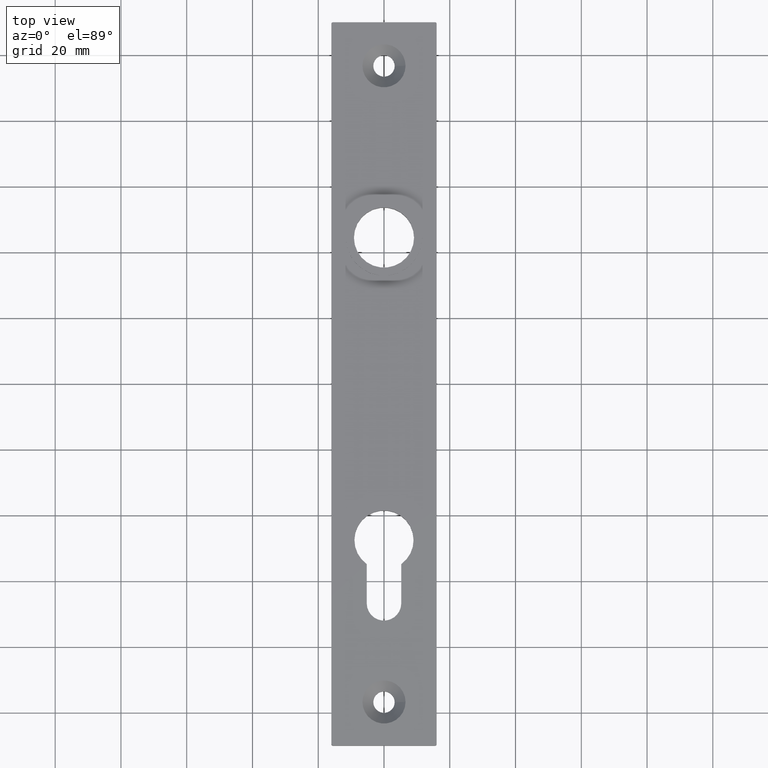
[diagram: clean part render]
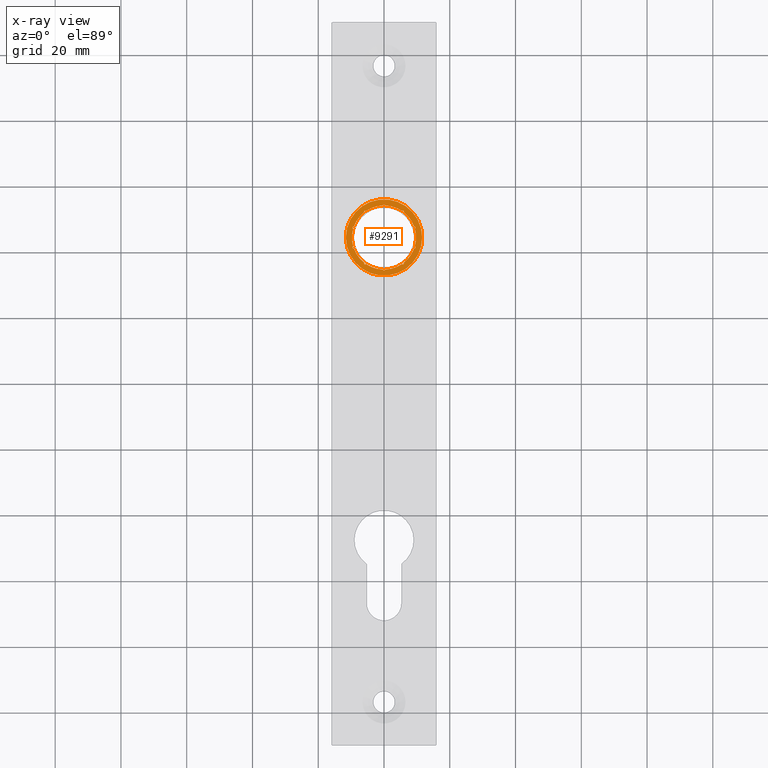
[diagram: x-ray — body ghosted, one internal face saturated and labeled with its STEP entity id]
A machine part, top view, then the same camera in x-ray: the body is ghosted and one INTERNAL B-rep face — a face not visible from any outside direction — is saturated and labeled: STEP entity #9291.
In plain terms, the highlighted planar face has unit normal (0, 0, -1).
Its self-contained STEP definition (entity closure, byte-faithful):
#13 = ORIENTED_EDGE ( 'NONE', *, *, #1065, .F. ) ;
#35 = ORIENTED_EDGE ( 'NONE', *, *, #4337, .F. ) ;
#56 = DIRECTION ( 'NONE',  ( -0.0000000000000000000, -0.0000000000000000000, -1.000000000000000000 ) ) ;
#109 = AXIS2_PLACEMENT_3D ( 'NONE', #5144, #2490, #6013 ) ;
#233 = AXIS2_PLACEMENT_3D ( 'NONE', #5116, #2496, #11509 ) ;
#245 = DIRECTION ( 'NONE',  ( -0.0000000000000000000, -0.0000000000000000000, -1.000000000000000000 ) ) ;
#263 = VECTOR ( 'NONE', #8222, 1000.000000000000200 ) ;
#308 = DIRECTION ( 'NONE',  ( 0.8090169943749507800, 0.5877852522924685900, 0.0000000000000000000 ) ) ;
#319 = VECTOR ( 'NONE', #6135, 1000.000000000000000 ) ;
#325 = CARTESIAN_POINT ( 'NONE',  ( -9.192498026025610600, -3.249689222297300600, 5.800000000000000700 ) ) ;
#475 = DIRECTION ( 'NONE',  ( 0.9510565162951543100, 0.3090169943749451200, 0.0000000000000000000 ) ) ;
#499 = CIRCLE ( 'NONE', #4382, 9.750000000000000000 ) ;
#521 = DIRECTION ( 'NONE',  ( 0.5877852522924740300, 0.8090169943749469000, 0.0000000000000000000 ) ) ;
#531 = VERTEX_POINT ( 'NONE', #6397 ) ;
#559 = CARTESIAN_POINT ( 'NONE',  ( -5.931276221600192000, -7.738375952554911800, 5.800000000000000700 ) ) ;
#580 = VECTOR ( 'NONE', #9521, 1000.000000000000000 ) ;
#582 = DIRECTION ( 'NONE',  ( 0.3090169943749515600, 0.9510565162951522000, 0.0000000000000000000 ) ) ;
#627 = VERTEX_POINT ( 'NONE', #3161 ) ;
#697 = AXIS2_PLACEMENT_3D ( 'NONE', #5592, #9920, #1908 ) ;
#713 = CARTESIAN_POINT ( 'NONE',  ( 0.2500000000000000000, -9.996874511566103300, 5.800000000000000700 ) ) ;
#716 = EDGE_CURVE ( 'NONE', #3924, #531, #5306, .T. ) ;
#724 = DIRECTION ( 'NONE',  ( -0.9510565162951522000, 0.3090169943749519500, 0.0000000000000000000 ) ) ;
#770 = VERTEX_POINT ( 'NONE', #3974 ) ;
#779 = LINE ( 'NONE', #11527, #9333 ) ;
#784 = ORIENTED_EDGE ( 'NONE', *, *, #1371, .F. ) ;
#798 = DIRECTION ( 'NONE',  ( -4.335418464185559100E-016, 1.000000000000000000, -0.0000000000000000000 ) ) ;
#801 = VERTEX_POINT ( 'NONE', #7722 ) ;
#872 = DIRECTION ( 'NONE',  ( -1.000000000000000000, 0.0000000000000000000, 0.0000000000000000000 ) ) ;
#910 = ORIENTED_EDGE ( 'NONE', *, *, #5597, .F. ) ;
#913 = VECTOR ( 'NONE', #10290, 999.9999999999998900 ) ;
#969 = CARTESIAN_POINT ( 'NONE',  ( 0.2500000000000000000, -9.996874511566103300, 5.800000000000000700 ) ) ;
#994 = EDGE_CURVE ( 'NONE', #4027, #2936, #8196, .T. ) ;
#1005 = ORIENTED_EDGE ( 'NONE', *, *, #9522, .F. ) ;
#1018 = ORIENTED_EDGE ( 'NONE', *, *, #9320, .F. ) ;
#1051 = ORIENTED_EDGE ( 'NONE', *, *, #6355, .F. ) ;
#1065 = EDGE_CURVE ( 'NONE', #6327, #1193, #5805, .T. ) ;
#1073 = CARTESIAN_POINT ( 'NONE',  ( -11.59999999999999800, 0.0000000000000000000, 5.800000000000000700 ) ) ;
#1114 = DIRECTION ( 'NONE',  ( 0.9510565162951498700, -0.3090169943749585500, 0.0000000000000000000 ) ) ;
#1129 = CARTESIAN_POINT ( 'NONE',  ( -9.584846895403638100, -2.851439985633797700, 5.800000000000000700 ) ) ;
#1138 = AXIS2_PLACEMENT_3D ( 'NONE', #7512, #8518, #6728 ) ;
#1150 = DIRECTION ( 'NONE',  ( 0.0000000000000000000, 0.0000000000000000000, -1.000000000000000000 ) ) ;
#1193 = VERTEX_POINT ( 'NONE', #5171 ) ;
#1199 = CARTESIAN_POINT ( 'NONE',  ( -9.347006523213023500, 2.774160964149919600, 5.800000000000000700 ) ) ;
#1228 = CARTESIAN_POINT ( 'NONE',  ( 0.0000000000000000000, 0.0000000000000000000, 5.800000000000000700 ) ) ;
#1324 = CARTESIAN_POINT ( 'NONE',  ( -6.078269655510708500, 7.940695057417690000, 5.800000000000000700 ) ) ;
#1363 = CARTESIAN_POINT ( 'NONE',  ( 9.584846895403620300, 2.851439985633862600, 5.800000000000000700 ) ) ;
#1371 = EDGE_CURVE ( 'NONE', #6170, #5822, #4948, .T. ) ;
#1393 = VERTEX_POINT ( 'NONE', #9126 ) ;
#1415 = CARTESIAN_POINT ( 'NONE',  ( 9.584846895403599000, -2.851439985633931400, 5.800000000000000700 ) ) ;
#1448 = ORIENTED_EDGE ( 'NONE', *, *, #9459, .F. ) ;
#1459 = ORIENTED_EDGE ( 'NONE', *, *, #1744, .F. ) ;
#1478 = CARTESIAN_POINT ( 'NONE',  ( -5.931276221600021400, 7.738375952555043300, 5.800000000000000700 ) ) ;
#1479 = LINE ( 'NONE', #11360, #8656 ) ;
#1518 = CIRCLE ( 'NONE', #7227, 10.00000000000000400 ) ;
#1545 = VECTOR ( 'NONE', #1114, 1000.000000000000100 ) ;
#1552 = DIRECTION ( 'NONE',  ( 4.335418464185559100E-016, 1.000000000000000000, 0.0000000000000000000 ) ) ;
#1553 = FACE_OUTER_BOUND ( 'NONE', #2237, .T. ) ;
#1584 = DIRECTION ( 'NONE',  ( 4.335418464185559100E-016, -1.000000000000000000, 0.0000000000000000000 ) ) ;
#1597 = VERTEX_POINT ( 'NONE', #11208 ) ;
#1631 = DIRECTION ( 'NONE',  ( -0.5877852522924745800, -0.8090169943749464500, 0.0000000000000000000 ) ) ;
#1691 = LINE ( 'NONE', #1324, #2409 ) ;
#1712 = AXIS2_PLACEMENT_3D ( 'NONE', #8399, #9383, #4051 ) ;
#1744 = EDGE_CURVE ( 'NONE', #11380, #9967, #3975, .T. ) ;
#1813 = DIRECTION ( 'NONE',  ( 0.0000000000000000000, 0.0000000000000000000, -1.000000000000000000 ) ) ;
#1822 = CARTESIAN_POINT ( 'NONE',  ( -5.526767724412721300, -8.032268578701151200, 5.800000000000000700 ) ) ;
#1846 = CARTESIAN_POINT ( 'NONE',  ( -5.673761158323230800, 8.234587683563923100, 5.800000000000000700 ) ) ;
#1875 = ORIENTED_EDGE ( 'NONE', *, *, #4650, .F. ) ;
#1908 = DIRECTION ( 'NONE',  ( 0.8090169943749422300, -0.5877852522924803500, 0.0000000000000000000 ) ) ;
#1952 = EDGE_CURVE ( 'NONE', #10498, #6170, #2842, .T. ) ;
#1966 = AXIS2_PLACEMENT_3D ( 'NONE', #8889, #3451, #6983 ) ;
#1979 = DIRECTION ( 'NONE',  ( -0.0000000000000000000, -0.0000000000000000000, -1.000000000000000000 ) ) ;
#2001 = CARTESIAN_POINT ( 'NONE',  ( 9.192498026025568000, -3.249689222297429800, 5.800000000000000700 ) ) ;
#2018 = CARTESIAN_POINT ( 'NONE',  ( 0.0000000000000000000, 0.0000000000000000000, 5.800000000000000700 ) ) ;
#2039 = CIRCLE ( 'NONE', #1138, 9.750000000000000000 ) ;
#2048 = CARTESIAN_POINT ( 'NONE',  ( -0.2499999999999998900, -9.746794344808963100, 5.800000000000000700 ) ) ;
#2063 = CARTESIAN_POINT ( 'NONE',  ( 0.0000000000000000000, 0.0000000000000000000, 5.800000000000000700 ) ) ;
#2126 = VERTEX_POINT ( 'NONE', #3514 ) ;
#2216 = VECTOR ( 'NONE', #7488, 1000.000000000000000 ) ;
#2237 = EDGE_LOOP ( 'NONE', ( #3639 ) ) ;
#2270 = CARTESIAN_POINT ( 'NONE',  ( -9.584846895403579500, 2.851439985633998500, 5.800000000000000700 ) ) ;
#2304 = CARTESIAN_POINT ( 'NONE',  ( -5.526767724412544600, 8.032268578701275500, 5.800000000000000700 ) ) ;
#2333 = CARTESIAN_POINT ( 'NONE',  ( 9.430338398216147100, 3.326968243781439800, 5.800000000000000700 ) ) ;
#2358 = VECTOR ( 'NONE', #1631, 999.9999999999998900 ) ;
#2409 = VECTOR ( 'NONE', #10326, 999.9999999999998900 ) ;
#2490 = DIRECTION ( 'NONE',  ( 0.0000000000000000000, 0.0000000000000000000, -1.000000000000000000 ) ) ;
#2496 = DIRECTION ( 'NONE',  ( -0.0000000000000000000, -0.0000000000000000000, -1.000000000000000000 ) ) ;
#2574 = CARTESIAN_POINT ( 'NONE',  ( -9.347006523213080300, -2.774160964149722900, 5.800000000000000700 ) ) ;
#2585 = CARTESIAN_POINT ( 'NONE',  ( -6.078269655510882600, -7.940695057417557700, 5.800000000000000700 ) ) ;
#2704 = EDGE_CURVE ( 'NONE', #5657, #4703, #10798, .T. ) ;
#2713 = VECTOR ( 'NONE', #2746, 1000.000000000000100 ) ;
#2746 = DIRECTION ( 'NONE',  ( -0.9510565162951500900, 0.3090169943749578300, 0.0000000000000000000 ) ) ;
#2814 = CARTESIAN_POINT ( 'NONE',  ( 0.0000000000000000000, 0.0000000000000000000, 5.800000000000000700 ) ) ;
#2842 = LINE ( 'NONE', #3960, #580 ) ;
#2850 = ORIENTED_EDGE ( 'NONE', *, *, #4534, .F. ) ;
#2936 = VERTEX_POINT ( 'NONE', #6861 ) ;
#3035 = CARTESIAN_POINT ( 'NONE',  ( -0.2499999999999989200, 9.746794344808963100, 5.800000000000000700 ) ) ;
#3053 = EDGE_CURVE ( 'NONE', #10393, #11407, #5997, .T. ) ;
#3087 = DIRECTION ( 'NONE',  ( 0.0000000000000000000, -0.0000000000000000000, -1.000000000000000000 ) ) ;
#3115 = CARTESIAN_POINT ( 'NONE',  ( 0.0000000000000000000, 0.0000000000000000000, 5.800000000000000700 ) ) ;
#3132 = PLANE ( 'NONE',  #1712 ) ;
#3161 = CARTESIAN_POINT ( 'NONE',  ( 5.526767724412605900, -8.032268578701231100, 5.800000000000000700 ) ) ;
#3183 = AXIS2_PLACEMENT_3D ( 'NONE', #2063, #11124, #8362 ) ;
#3258 = CARTESIAN_POINT ( 'NONE',  ( 6.078269655510768000, -7.940695057417644700, 5.800000000000000700 ) ) ;
#3283 = EDGE_CURVE ( 'NONE', #1193, #5521, #4996, .T. ) ;
#3315 = ORIENTED_EDGE ( 'NONE', *, *, #3053, .F. ) ;
#3408 = CIRCLE ( 'NONE', #233, 11.59999999999999800 ) ;
#3434 = EDGE_CURVE ( 'NONE', #2936, #6884, #9779, .T. ) ;
#3451 = DIRECTION ( 'NONE',  ( -0.0000000000000000000, -0.0000000000000000000, -1.000000000000000000 ) ) ;
#3458 = CARTESIAN_POINT ( 'NONE',  ( 9.430338398216124000, -3.326968243781508200, 5.800000000000000700 ) ) ;
#3462 = DIRECTION ( 'NONE',  ( -0.5877852522924682500, 0.8090169943749510000, 0.0000000000000000000 ) ) ;
#3489 = CARTESIAN_POINT ( 'NONE',  ( 0.0000000000000000000, 0.0000000000000000000, 5.800000000000000700 ) ) ;
#3493 = ORIENTED_EDGE ( 'NONE', *, *, #5956, .F. ) ;
#3500 = VERTEX_POINT ( 'NONE', #8648 ) ;
#3513 = ORIENTED_EDGE ( 'NONE', *, *, #4416, .F. ) ;
#3514 = CARTESIAN_POINT ( 'NONE',  ( 5.673761158323352500, 8.234587683563841400, 5.800000000000000700 ) ) ;
#3639 = ORIENTED_EDGE ( 'NONE', *, *, #6176, .T. ) ;
#3678 = CARTESIAN_POINT ( 'NONE',  ( 9.192498026025591100, 3.249689222297362800, 5.800000000000000700 ) ) ;
#3686 = VERTEX_POINT ( 'NONE', #4556 ) ;
#3737 = EDGE_LOOP ( 'NONE', ( #1875, #1051, #7074, #1018, #3315, #10103, #9150, #6036, #35, #5857, #13, #11122, #784, #5754, #910, #4129, #11100, #3513, #7433, #5406, #10062, #9410, #4075, #8549, #2850, #9248, #1448, #11722, #7878, #4358, #6933, #3493, #8657, #4886, #9239, #4060, #4494, #1005, #10119, #1459 ) ) ;
#3742 = EDGE_CURVE ( 'NONE', #8463, #3924, #2039, .T. ) ;
#3772 = CARTESIAN_POINT ( 'NONE',  ( 0.0000000000000000000, 0.0000000000000000000, 5.800000000000000700 ) ) ;
#3858 = VERTEX_POINT ( 'NONE', #10414 ) ;
#3890 = DIRECTION ( 'NONE',  ( -0.5877852522924798000, -0.8090169943749424600, 0.0000000000000000000 ) ) ;
#3924 = VERTEX_POINT ( 'NONE', #1822 ) ;
#3932 = AXIS2_PLACEMENT_3D ( 'NONE', #4705, #11001, #10877 ) ;
#3960 = CARTESIAN_POINT ( 'NONE',  ( -6.078269655510882600, -7.940695057417557700, 5.800000000000000700 ) ) ;
#3974 = CARTESIAN_POINT ( 'NONE',  ( 6.078269655510824900, 7.940695057417604700, 5.800000000000000700 ) ) ;
#3975 = LINE ( 'NONE', #8931, #10274 ) ;
#4027 = VERTEX_POINT ( 'NONE', #10612 ) ;
#4051 = DIRECTION ( 'NONE',  ( -1.000000000000000000, 0.0000000000000000000, 0.0000000000000000000 ) ) ;
#4060 = ORIENTED_EDGE ( 'NONE', *, *, #7226, .F. ) ;
#4075 = ORIENTED_EDGE ( 'NONE', *, *, #3434, .F. ) ;
#4107 = LINE ( 'NONE', #4415, #4795 ) ;
#4129 = ORIENTED_EDGE ( 'NONE', *, *, #716, .F. ) ;
#4168 = AXIS2_PLACEMENT_3D ( 'NONE', #11687, #6258, #872 ) ;
#4170 = CARTESIAN_POINT ( 'NONE',  ( 9.584846895403620300, 2.851439985633862600, 5.800000000000000700 ) ) ;
#4329 = CARTESIAN_POINT ( 'NONE',  ( 9.347006523213064400, 2.774160964149786400, 5.800000000000000700 ) ) ;
#4337 = EDGE_CURVE ( 'NONE', #5521, #11254, #499, .T. ) ;
#4358 = ORIENTED_EDGE ( 'NONE', *, *, #9300, .F. ) ;
#4366 = CARTESIAN_POINT ( 'NONE',  ( 0.0000000000000000000, 0.0000000000000000000, 5.800000000000000700 ) ) ;
#4382 = AXIS2_PLACEMENT_3D ( 'NONE', #10354, #11243, #8464 ) ;
#4415 = CARTESIAN_POINT ( 'NONE',  ( 5.673761158323293000, -8.234587683563880500, 5.800000000000000700 ) ) ;
#4416 = EDGE_CURVE ( 'NONE', #9529, #8463, #1479, .T. ) ;
#4494 = ORIENTED_EDGE ( 'NONE', *, *, #2704, .F. ) ;
#4534 = EDGE_CURVE ( 'NONE', #6753, #4027, #5053, .T. ) ;
#4556 = CARTESIAN_POINT ( 'NONE',  ( 0.2500000000000000000, 9.996874511566103300, 5.800000000000000700 ) ) ;
#4586 = VECTOR ( 'NONE', #3890, 1000.000000000000200 ) ;
#4650 = EDGE_CURVE ( 'NONE', #7716, #11380, #7332, .T. ) ;
#4703 = VERTEX_POINT ( 'NONE', #5217 ) ;
#4705 = CARTESIAN_POINT ( 'NONE',  ( 0.0000000000000000000, 0.0000000000000000000, 5.800000000000000700 ) ) ;
#4763 = VECTOR ( 'NONE', #1584, 1000.000000000000000 ) ;
#4795 = VECTOR ( 'NONE', #3462, 1000.000000000000000 ) ;
#4876 = CARTESIAN_POINT ( 'NONE',  ( -5.673761158323411100, -8.234587683563797000, 5.800000000000000700 ) ) ;
#4886 = ORIENTED_EDGE ( 'NONE', *, *, #7987, .F. ) ;
#4889 = EDGE_CURVE ( 'NONE', #3858, #10393, #6457, .T. ) ;
#4948 = CIRCLE ( 'NONE', #4960, 9.750000000000000000 ) ;
#4960 = AXIS2_PLACEMENT_3D ( 'NONE', #3772, #245, #8205 ) ;
#4996 = LINE ( 'NONE', #1129, #5407 ) ;
#5015 = AXIS2_PLACEMENT_3D ( 'NONE', #6541, #1150, #5466 ) ;
#5021 = LINE ( 'NONE', #3458, #11693 ) ;
#5053 = CIRCLE ( 'NONE', #1966, 9.750000000000000000 ) ;
#5078 = LINE ( 'NONE', #9907, #2713 ) ;
#5106 = EDGE_CURVE ( 'NONE', #627, #1597, #8151, .T. ) ;
#5116 = CARTESIAN_POINT ( 'NONE',  ( 0.0000000000000000000, 0.0000000000000000000, 5.800000000000000700 ) ) ;
#5137 = AXIS2_PLACEMENT_3D ( 'NONE', #3115, #11074, #11205 ) ;
#5144 = CARTESIAN_POINT ( 'NONE',  ( 0.0000000000000000000, 0.0000000000000000000, 5.800000000000000700 ) ) ;
#5171 = CARTESIAN_POINT ( 'NONE',  ( -9.584846895403638100, -2.851439985633797700, 5.800000000000000700 ) ) ;
#5217 = CARTESIAN_POINT ( 'NONE',  ( 5.526767724412663600, 8.032268578701195600, 5.800000000000000700 ) ) ;
#5247 = CARTESIAN_POINT ( 'NONE',  ( -0.2500000000000000000, -9.996874511566103300, 5.800000000000000700 ) ) ;
#5306 = LINE ( 'NONE', #4876, #4586 ) ;
#5406 = ORIENTED_EDGE ( 'NONE', *, *, #6154, .F. ) ;
#5407 = VECTOR ( 'NONE', #6410, 1000.000000000000100 ) ;
#5438 = CIRCLE ( 'NONE', #5936, 10.00000000000000200 ) ;
#5464 = VERTEX_POINT ( 'NONE', #4170 ) ;
#5466 = DIRECTION ( 'NONE',  ( -0.3090169943749446800, 0.9510565162951544200, 0.0000000000000000000 ) ) ;
#5477 = DIRECTION ( 'NONE',  ( -4.335418464185559100E-016, -1.000000000000000000, 0.0000000000000000000 ) ) ;
#5487 = AXIS2_PLACEMENT_3D ( 'NONE', #1228, #1979, #8276 ) ;
#5521 = VERTEX_POINT ( 'NONE', #2574 ) ;
#5592 = CARTESIAN_POINT ( 'NONE',  ( 0.0000000000000000000, 0.0000000000000000000, 5.800000000000000700 ) ) ;
#5597 = EDGE_CURVE ( 'NONE', #531, #10498, #6598, .T. ) ;
#5657 = VERTEX_POINT ( 'NONE', #11285 ) ;
#5731 = CIRCLE ( 'NONE', #10697, 10.00000000000000000 ) ;
#5754 = ORIENTED_EDGE ( 'NONE', *, *, #1952, .F. ) ;
#5793 = AXIS2_PLACEMENT_3D ( 'NONE', #9331, #7621, #10197 ) ;
#5805 = CIRCLE ( 'NONE', #5793, 10.00000000000000200 ) ;
#5807 = CIRCLE ( 'NONE', #3932, 10.00000000000000000 ) ;
#5822 = VERTEX_POINT ( 'NONE', #325 ) ;
#5857 = ORIENTED_EDGE ( 'NONE', *, *, #3283, .F. ) ;
#5906 = LINE ( 'NONE', #1846, #263 ) ;
#5932 = VERTEX_POINT ( 'NONE', #1073 ) ;
#5936 = AXIS2_PLACEMENT_3D ( 'NONE', #8646, #5965, #582 ) ;
#5946 = VERTEX_POINT ( 'NONE', #1415 ) ;
#5956 = EDGE_CURVE ( 'NONE', #7466, #8577, #8416, .T. ) ;
#5965 = DIRECTION ( 'NONE',  ( 0.0000000000000000000, -0.0000000000000000000, -1.000000000000000000 ) ) ;
#5997 = CIRCLE ( 'NONE', #6035, 9.750000000000000000 ) ;
#6004 = LINE ( 'NONE', #6560, #913 ) ;
#6013 = DIRECTION ( 'NONE',  ( -0.8090169943749551100, -0.5877852522924623700, 0.0000000000000000000 ) ) ;
#6035 = AXIS2_PLACEMENT_3D ( 'NONE', #8954, #56, #8023 ) ;
#6036 = ORIENTED_EDGE ( 'NONE', *, *, #10045, .F. ) ;
#6135 = DIRECTION ( 'NONE',  ( 0.5877852522924689200, -0.8090169943749505600, 0.0000000000000000000 ) ) ;
#6154 = EDGE_CURVE ( 'NONE', #1597, #11127, #11004, .T. ) ;
#6170 = VERTEX_POINT ( 'NONE', #559 ) ;
#6176 = EDGE_CURVE ( 'NONE', #5932, #5932, #3408, .T. ) ;
#6226 = CIRCLE ( 'NONE', #9926, 9.750000000000000000 ) ;
#6258 = DIRECTION ( 'NONE',  ( -0.0000000000000000000, -0.0000000000000000000, -1.000000000000000000 ) ) ;
#6327 = VERTEX_POINT ( 'NONE', #9936 ) ;
#6355 = EDGE_CURVE ( 'NONE', #801, #7716, #5906, .T. ) ;
#6397 = CARTESIAN_POINT ( 'NONE',  ( -5.673761158323411100, -8.234587683563797000, 5.800000000000000700 ) ) ;
#6410 = DIRECTION ( 'NONE',  ( 0.9510565162951567500, 0.3090169943749379000, 0.0000000000000000000 ) ) ;
#6431 = CARTESIAN_POINT ( 'NONE',  ( -9.430338398216099100, 3.326968243781573100, 5.800000000000000700 ) ) ;
#6434 = CIRCLE ( 'NONE', #3183, 10.00000000000000000 ) ;
#6457 = LINE ( 'NONE', #6431, #1545 ) ;
#6515 = CARTESIAN_POINT ( 'NONE',  ( 9.430338398216124000, -3.326968243781508200, 5.800000000000000700 ) ) ;
#6535 = CARTESIAN_POINT ( 'NONE',  ( -9.430338398216168400, -3.326968243781375900, 5.800000000000000700 ) ) ;
#6541 = CARTESIAN_POINT ( 'NONE',  ( 0.0000000000000000000, 0.0000000000000000000, 5.800000000000000700 ) ) ;
#6560 = CARTESIAN_POINT ( 'NONE',  ( 9.584846895403599000, -2.851439985633931400, 5.800000000000000700 ) ) ;
#6598 = CIRCLE ( 'NONE', #697, 9.999999999999998200 ) ;
#6604 = CARTESIAN_POINT ( 'NONE',  ( 0.0000000000000000000, 0.0000000000000000000, 5.800000000000000700 ) ) ;
#6685 = VERTEX_POINT ( 'NONE', #11658 ) ;
#6728 = DIRECTION ( 'NONE',  ( -1.000000000000000000, 0.0000000000000000000, 0.0000000000000000000 ) ) ;
#6753 = VERTEX_POINT ( 'NONE', #2001 ) ;
#6861 = CARTESIAN_POINT ( 'NONE',  ( 6.078269655510768000, -7.940695057417644700, 5.800000000000000700 ) ) ;
#6884 = VERTEX_POINT ( 'NONE', #7776 ) ;
#6933 = ORIENTED_EDGE ( 'NONE', *, *, #7856, .F. ) ;
#6983 = DIRECTION ( 'NONE',  ( -1.000000000000000000, 0.0000000000000000000, 0.0000000000000000000 ) ) ;
#7062 = CARTESIAN_POINT ( 'NONE',  ( -9.192498026025543100, 3.249689222297493400, 5.800000000000000700 ) ) ;
#7063 = LINE ( 'NONE', #1363, #7191 ) ;
#7074 = ORIENTED_EDGE ( 'NONE', *, *, #8573, .F. ) ;
#7191 = VECTOR ( 'NONE', #7550, 999.9999999999998900 ) ;
#7226 = EDGE_CURVE ( 'NONE', #4703, #2126, #9242, .T. ) ;
#7227 = AXIS2_PLACEMENT_3D ( 'NONE', #2814, #1813, #10890 ) ;
#7332 = CIRCLE ( 'NONE', #4168, 9.750000000000000000 ) ;
#7339 = CIRCLE ( 'NONE', #8737, 9.750000000000000000 ) ;
#7347 = EDGE_CURVE ( 'NONE', #8877, #6753, #5021, .T. ) ;
#7353 = DIRECTION ( 'NONE',  ( -0.0000000000000000000, -0.0000000000000000000, -1.000000000000000000 ) ) ;
#7377 = EDGE_CURVE ( 'NONE', #11127, #9529, #5731, .T. ) ;
#7433 = ORIENTED_EDGE ( 'NONE', *, *, #7377, .F. ) ;
#7466 = VERTEX_POINT ( 'NONE', #3678 ) ;
#7488 = DIRECTION ( 'NONE',  ( -0.9510565162951564200, -0.3090169943749386800, 0.0000000000000000000 ) ) ;
#7512 = CARTESIAN_POINT ( 'NONE',  ( 0.0000000000000000000, 0.0000000000000000000, 5.800000000000000700 ) ) ;
#7546 = EDGE_CURVE ( 'NONE', #2126, #770, #1518, .T. ) ;
#7550 = DIRECTION ( 'NONE',  ( -0.9510565162951546400, -0.3090169943749443400, 0.0000000000000000000 ) ) ;
#7621 = DIRECTION ( 'NONE',  ( -0.0000000000000000000, 0.0000000000000000000, -1.000000000000000000 ) ) ;
#7709 = EDGE_CURVE ( 'NONE', #5822, #6327, #9802, .T. ) ;
#7716 = VERTEX_POINT ( 'NONE', #2304 ) ;
#7722 = CARTESIAN_POINT ( 'NONE',  ( -5.673761158323230800, 8.234587683563923100, 5.800000000000000700 ) ) ;
#7776 = CARTESIAN_POINT ( 'NONE',  ( 5.673761158323293000, -8.234587683563880500, 5.800000000000000700 ) ) ;
#7856 = EDGE_CURVE ( 'NONE', #8577, #5464, #10674, .T. ) ;
#7866 = VECTOR ( 'NONE', #521, 999.9999999999998900 ) ;
#7878 = ORIENTED_EDGE ( 'NONE', *, *, #10941, .F. ) ;
#7891 = EDGE_CURVE ( 'NONE', #8848, #3858, #6434, .T. ) ;
#7987 = EDGE_CURVE ( 'NONE', #770, #1393, #11409, .T. ) ;
#8023 = DIRECTION ( 'NONE',  ( -1.000000000000000000, 0.0000000000000000000, 0.0000000000000000000 ) ) ;
#8151 = CIRCLE ( 'NONE', #5137, 9.750000000000000000 ) ;
#8196 = LINE ( 'NONE', #3258, #319 ) ;
#8205 = DIRECTION ( 'NONE',  ( -1.000000000000000000, 0.0000000000000000000, 0.0000000000000000000 ) ) ;
#8222 = DIRECTION ( 'NONE',  ( 0.5877852522924621500, -0.8090169943749553300, 0.0000000000000000000 ) ) ;
#8251 = EDGE_CURVE ( 'NONE', #3500, #5946, #6004, .T. ) ;
#8276 = DIRECTION ( 'NONE',  ( -1.000000000000000000, 0.0000000000000000000, 0.0000000000000000000 ) ) ;
#8278 = DIRECTION ( 'NONE',  ( -1.000000000000000000, 0.0000000000000000000, 0.0000000000000000000 ) ) ;
#8362 = DIRECTION ( 'NONE',  ( -0.3090169943749582200, -0.9510565162951500900, 0.0000000000000000000 ) ) ;
#8399 = CARTESIAN_POINT ( 'NONE',  ( 0.0000000000000000000, 11.59999999999999800, 5.800000000000000700 ) ) ;
#8416 = LINE ( 'NONE', #10375, #10545 ) ;
#8463 = VERTEX_POINT ( 'NONE', #2048 ) ;
#8464 = DIRECTION ( 'NONE',  ( -1.000000000000000000, 0.0000000000000000000, 0.0000000000000000000 ) ) ;
#8518 = DIRECTION ( 'NONE',  ( -0.0000000000000000000, -0.0000000000000000000, -1.000000000000000000 ) ) ;
#8549 = ORIENTED_EDGE ( 'NONE', *, *, #994, .F. ) ;
#8573 = EDGE_CURVE ( 'NONE', #6685, #801, #10481, .T. ) ;
#8577 = VERTEX_POINT ( 'NONE', #2333 ) ;
#8646 = CARTESIAN_POINT ( 'NONE',  ( 0.0000000000000000000, 0.0000000000000000000, 5.800000000000000700 ) ) ;
#8648 = CARTESIAN_POINT ( 'NONE',  ( 9.347006523213043000, -2.774160964149854800, 5.800000000000000700 ) ) ;
#8656 = VECTOR ( 'NONE', #1552, 1000.000000000000000 ) ;
#8657 = ORIENTED_EDGE ( 'NONE', *, *, #9081, .F. ) ;
#8737 = AXIS2_PLACEMENT_3D ( 'NONE', #4366, #8844, #9782 ) ;
#8844 = DIRECTION ( 'NONE',  ( -0.0000000000000000000, -0.0000000000000000000, -1.000000000000000000 ) ) ;
#8848 = VERTEX_POINT ( 'NONE', #2270 ) ;
#8877 = VERTEX_POINT ( 'NONE', #6515 ) ;
#8889 = CARTESIAN_POINT ( 'NONE',  ( 0.0000000000000000000, 0.0000000000000000000, 5.800000000000000700 ) ) ;
#8931 = CARTESIAN_POINT ( 'NONE',  ( -0.2500000000000000000, 9.996874511566103300, 5.800000000000000700 ) ) ;
#8954 = CARTESIAN_POINT ( 'NONE',  ( 0.0000000000000000000, 0.0000000000000000000, 5.800000000000000700 ) ) ;
#9081 = EDGE_CURVE ( 'NONE', #1393, #7466, #7339, .T. ) ;
#9101 = VERTEX_POINT ( 'NONE', #4329 ) ;
#9126 = CARTESIAN_POINT ( 'NONE',  ( 5.931276221600136000, 7.738375952554958000, 5.800000000000000700 ) ) ;
#9150 = ORIENTED_EDGE ( 'NONE', *, *, #7891, .F. ) ;
#9239 = ORIENTED_EDGE ( 'NONE', *, *, #7546, .F. ) ;
#9242 = LINE ( 'NONE', #11357, #7866 ) ;
#9248 = ORIENTED_EDGE ( 'NONE', *, *, #7347, .F. ) ;
#9291 = ADVANCED_FACE ( 'NONE', ( #1553, #10423 ), #3132, .T. ) ;
#9300 = EDGE_CURVE ( 'NONE', #5464, #9101, #7063, .T. ) ;
#9320 = EDGE_CURVE ( 'NONE', #11407, #6685, #1691, .T. ) ;
#9331 = CARTESIAN_POINT ( 'NONE',  ( 0.0000000000000000000, 0.0000000000000000000, 5.800000000000000700 ) ) ;
#9333 = VECTOR ( 'NONE', #5477, 1000.000000000000000 ) ;
#9383 = DIRECTION ( 'NONE',  ( -0.0000000000000000000, 0.0000000000000000000, -1.000000000000000000 ) ) ;
#9410 = ORIENTED_EDGE ( 'NONE', *, *, #9937, .F. ) ;
#9459 = EDGE_CURVE ( 'NONE', #5946, #8877, #5438, .T. ) ;
#9521 = DIRECTION ( 'NONE',  ( 0.5877852522924805800, 0.8090169943749420100, 0.0000000000000000000 ) ) ;
#9522 = EDGE_CURVE ( 'NONE', #3686, #5657, #779, .T. ) ;
#9529 = VERTEX_POINT ( 'NONE', #5247 ) ;
#9688 = DIRECTION ( 'NONE',  ( 1.000000000000000000, 0.0000000000000000000, 0.0000000000000000000 ) ) ;
#9779 = CIRCLE ( 'NONE', #10086, 10.00000000000000000 ) ;
#9782 = DIRECTION ( 'NONE',  ( -1.000000000000000000, 0.0000000000000000000, 0.0000000000000000000 ) ) ;
#9802 = LINE ( 'NONE', #6535, #2216 ) ;
#9907 = CARTESIAN_POINT ( 'NONE',  ( -9.584846895403579500, 2.851439985633998500, 5.800000000000000700 ) ) ;
#9920 = DIRECTION ( 'NONE',  ( -0.0000000000000000000, 0.0000000000000000000, -1.000000000000000000 ) ) ;
#9926 = AXIS2_PLACEMENT_3D ( 'NONE', #2018, #7353, #8278 ) ;
#9936 = CARTESIAN_POINT ( 'NONE',  ( -9.430338398216168400, -3.326968243781375900, 5.800000000000000700 ) ) ;
#9937 = EDGE_CURVE ( 'NONE', #6884, #627, #4107, .T. ) ;
#9967 = VERTEX_POINT ( 'NONE', #10694 ) ;
#10045 = EDGE_CURVE ( 'NONE', #11254, #8848, #5078, .T. ) ;
#10062 = ORIENTED_EDGE ( 'NONE', *, *, #5106, .F. ) ;
#10086 = AXIS2_PLACEMENT_3D ( 'NONE', #6604, #3087, #308 ) ;
#10103 = ORIENTED_EDGE ( 'NONE', *, *, #4889, .F. ) ;
#10119 = ORIENTED_EDGE ( 'NONE', *, *, #10592, .F. ) ;
#10197 = DIRECTION ( 'NONE',  ( 0.3090169943749382400, -0.9510565162951565300, 0.0000000000000000000 ) ) ;
#10274 = VECTOR ( 'NONE', #798, 1000.000000000000000 ) ;
#10290 = DIRECTION ( 'NONE',  ( 0.9510565162951524200, -0.3090169943749512300, 0.0000000000000000000 ) ) ;
#10326 = DIRECTION ( 'NONE',  ( -0.5877852522924629200, 0.8090169943749548900, 0.0000000000000000000 ) ) ;
#10354 = CARTESIAN_POINT ( 'NONE',  ( 0.0000000000000000000, 0.0000000000000000000, 5.800000000000000700 ) ) ;
#10375 = CARTESIAN_POINT ( 'NONE',  ( 9.430338398216147100, 3.326968243781439800, 5.800000000000000700 ) ) ;
#10393 = VERTEX_POINT ( 'NONE', #7062 ) ;
#10414 = CARTESIAN_POINT ( 'NONE',  ( -9.430338398216099100, 3.326968243781573100, 5.800000000000000700 ) ) ;
#10423 = FACE_BOUND ( 'NONE', #3737, .T. ) ;
#10481 = CIRCLE ( 'NONE', #109, 10.00000000000000200 ) ;
#10497 = CARTESIAN_POINT ( 'NONE',  ( 6.078269655510824900, 7.940695057417604700, 5.800000000000000700 ) ) ;
#10498 = VERTEX_POINT ( 'NONE', #2585 ) ;
#10545 = VECTOR ( 'NONE', #475, 1000.000000000000000 ) ;
#10592 = EDGE_CURVE ( 'NONE', #9967, #3686, #5807, .T. ) ;
#10612 = CARTESIAN_POINT ( 'NONE',  ( 5.931276221600079200, -7.738375952554998900, 5.800000000000000700 ) ) ;
#10615 = DIRECTION ( 'NONE',  ( 0.0000000000000000000, 0.0000000000000000000, -1.000000000000000000 ) ) ;
#10674 = CIRCLE ( 'NONE', #5015, 10.00000000000000400 ) ;
#10694 = CARTESIAN_POINT ( 'NONE',  ( -0.2500000000000000000, 9.996874511566103300, 5.800000000000000700 ) ) ;
#10697 = AXIS2_PLACEMENT_3D ( 'NONE', #3489, #10615, #9688 ) ;
#10798 = CIRCLE ( 'NONE', #5487, 9.750000000000000000 ) ;
#10877 = DIRECTION ( 'NONE',  ( -1.000000000000000000, 0.0000000000000000000, 0.0000000000000000000 ) ) ;
#10890 = DIRECTION ( 'NONE',  ( -0.8090169943749466700, 0.5877852522924741400, 0.0000000000000000000 ) ) ;
#10941 = EDGE_CURVE ( 'NONE', #9101, #3500, #6226, .T. ) ;
#11001 = DIRECTION ( 'NONE',  ( 0.0000000000000000000, 0.0000000000000000000, -1.000000000000000000 ) ) ;
#11004 = LINE ( 'NONE', #713, #4763 ) ;
#11074 = DIRECTION ( 'NONE',  ( -0.0000000000000000000, -0.0000000000000000000, -1.000000000000000000 ) ) ;
#11100 = ORIENTED_EDGE ( 'NONE', *, *, #3742, .F. ) ;
#11122 = ORIENTED_EDGE ( 'NONE', *, *, #7709, .F. ) ;
#11124 = DIRECTION ( 'NONE',  ( 0.0000000000000000000, 0.0000000000000000000, -1.000000000000000000 ) ) ;
#11127 = VERTEX_POINT ( 'NONE', #969 ) ;
#11205 = DIRECTION ( 'NONE',  ( -1.000000000000000000, 0.0000000000000000000, 0.0000000000000000000 ) ) ;
#11208 = CARTESIAN_POINT ( 'NONE',  ( 0.2499999999999989200, -9.746794344808963100, 5.800000000000000700 ) ) ;
#11243 = DIRECTION ( 'NONE',  ( -0.0000000000000000000, -0.0000000000000000000, -1.000000000000000000 ) ) ;
#11254 = VERTEX_POINT ( 'NONE', #1199 ) ;
#11285 = CARTESIAN_POINT ( 'NONE',  ( 0.2499999999999998900, 9.746794344808963100, 5.800000000000000700 ) ) ;
#11357 = CARTESIAN_POINT ( 'NONE',  ( 5.673761158323352500, 8.234587683563841400, 5.800000000000000700 ) ) ;
#11360 = CARTESIAN_POINT ( 'NONE',  ( -0.2500000000000000000, -9.996874511566103300, 5.800000000000000700 ) ) ;
#11380 = VERTEX_POINT ( 'NONE', #3035 ) ;
#11407 = VERTEX_POINT ( 'NONE', #1478 ) ;
#11409 = LINE ( 'NONE', #10497, #2358 ) ;
#11509 = DIRECTION ( 'NONE',  ( -1.000000000000000000, 0.0000000000000000000, 0.0000000000000000000 ) ) ;
#11527 = CARTESIAN_POINT ( 'NONE',  ( 0.2500000000000000000, 9.996874511566103300, 5.800000000000000700 ) ) ;
#11658 = CARTESIAN_POINT ( 'NONE',  ( -6.078269655510708500, 7.940695057417690000, 5.800000000000000700 ) ) ;
#11687 = CARTESIAN_POINT ( 'NONE',  ( 0.0000000000000000000, 0.0000000000000000000, 5.800000000000000700 ) ) ;
#11693 = VECTOR ( 'NONE', #724, 999.9999999999998900 ) ;
#11722 = ORIENTED_EDGE ( 'NONE', *, *, #8251, .F. ) ;